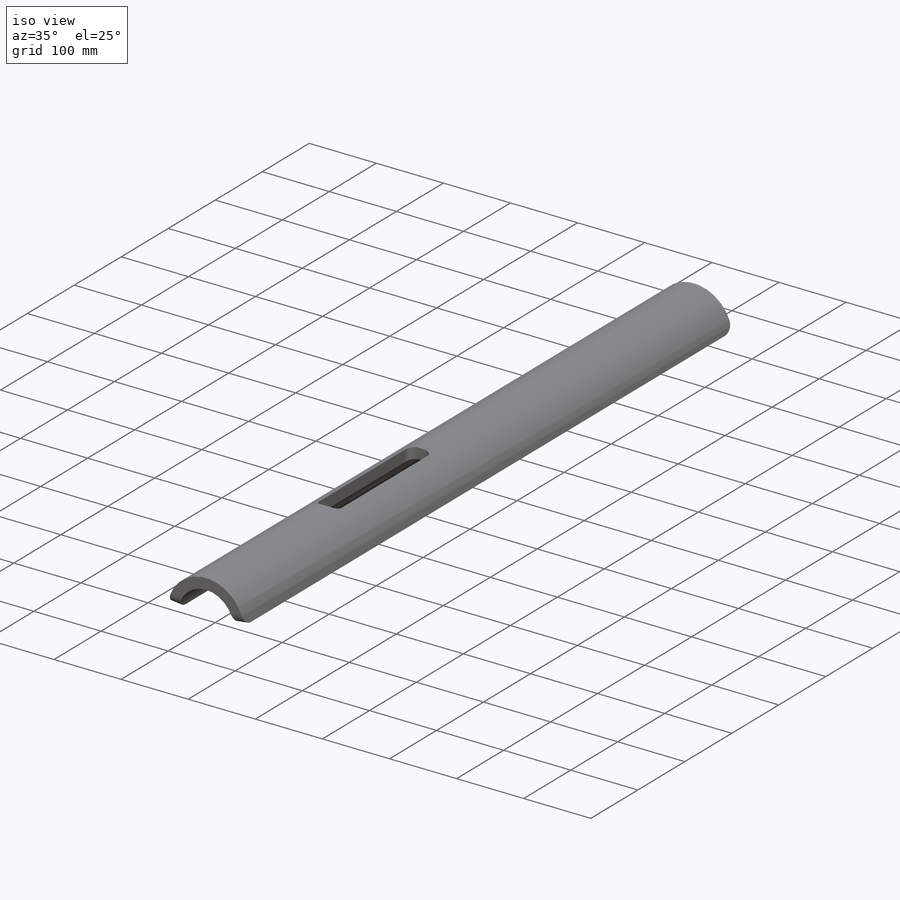
[diagram: iso view]
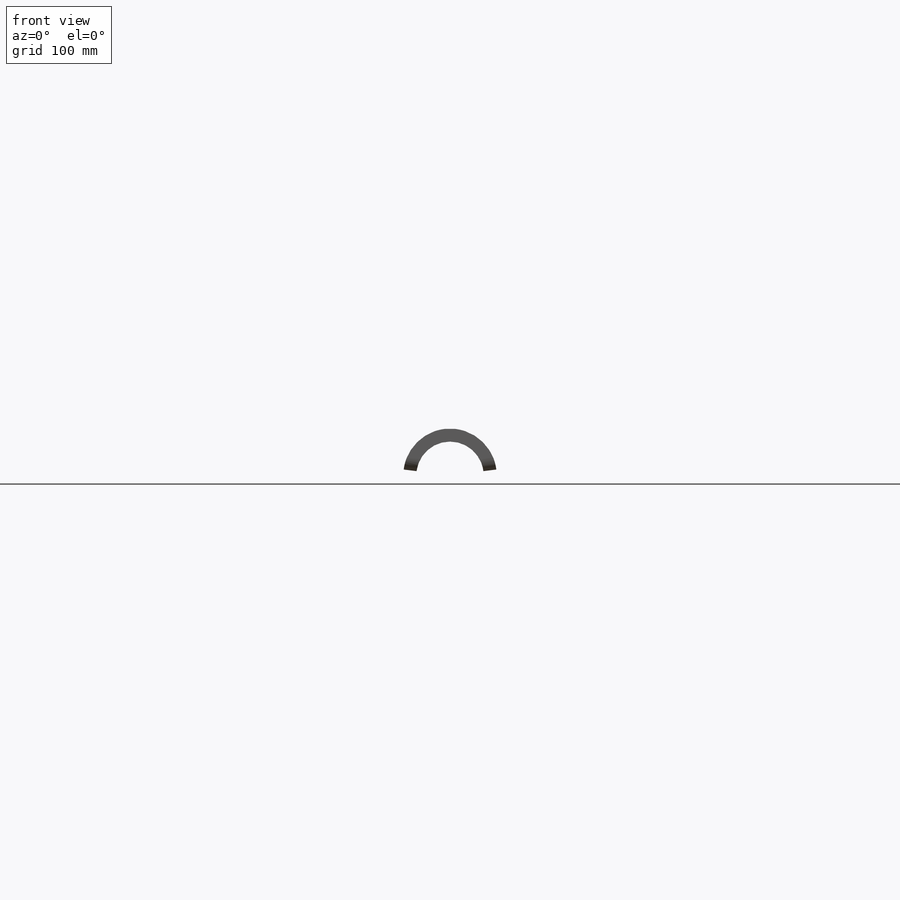
[diagram: front view]
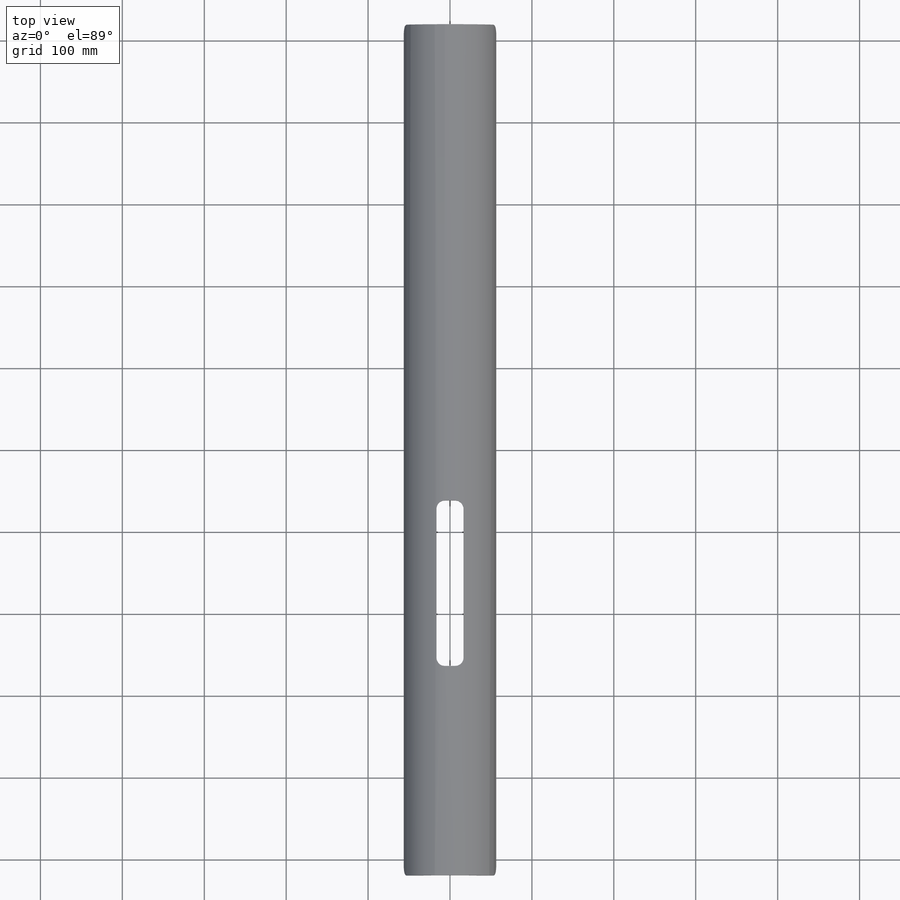
[diagram: top view]
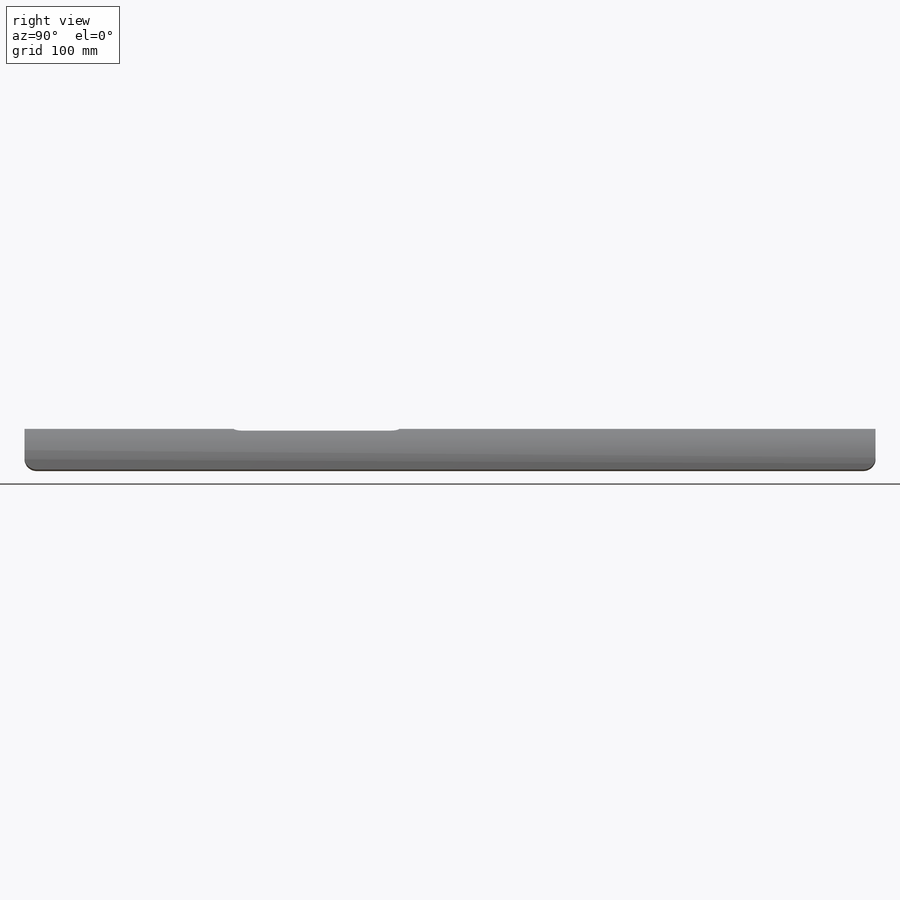
[diagram: right view]
SOLIDWORKS PART (.sldprt)
format: sldprt  version: not decoded by parser v0  size: 212,992 bytes
history: native  units: mm
features: sketch x2, fillet x2, material x1, extrude x1, plane x1, cut_extrude x1 (+11 scaffold rows collapsed)
feature tree (19):
  scaffold x11  (default folders/planes/origin — collapsed)
  material  "A-Glass Fiber"
  sketch  "Sketch1"  dims[D1=82.12mm D2=113.87mm D3=5.0mm]
  extrude  "Boss-Extrude1"  Depth=1039mm
  fillet  "Fillet1"  Radius=15mm
  plane  "Plane4"  Offset=67mm
  sketch  "Sketch2"  dims[c1.D1=221.5mm c1.D2=33.0mm c1.D3=59.0mm c2.D1=62.0mm c2.D3=264.0mm]
  cut_extrude  "Cut-Extrude1"  [1 undecoded]
  fillet  "Fillet2"  Radius=10mm
decode coverage: 5 of 6 modeling features carry decoded parameters
note: 1 parameter value undecoded
note: suppression state not decoded; provenance and decode notes live in map.json
